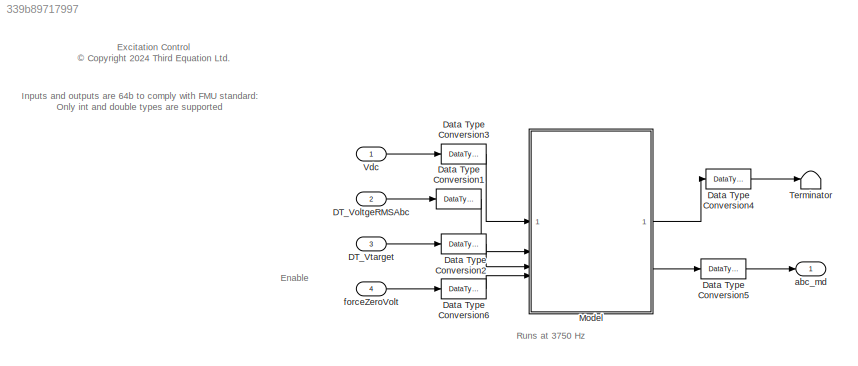
MODEL slx_339b89717997
KIND model
BLOCK [Inport] DT_VoltgeRMSAbc
  OutDataTypeStr = double
  Port = 2
  PortDimensions = 3
  Unit = V
BLOCK [Inport] DT_Vtarget
  OutDataTypeStr = double
  Port = 3
  PortDimensions = 3
  Unit = V
BLOCK [DataTypeConversion] Data Type Conversion1
  RndMeth = Floor
  SaturateOnIntegerOverflow = off
BLOCK [DataTypeConversion] Data Type Conversion2
  RndMeth = Floor
  SaturateOnIntegerOverflow = off
BLOCK [DataTypeConversion] Data Type Conversion3
  RndMeth = Floor
  SaturateOnIntegerOverflow = off
BLOCK [DataTypeConversion] Data Type Conversion4
  RndMeth = Floor
  SaturateOnIntegerOverflow = off
BLOCK [DataTypeConversion] Data Type Conversion5
  RndMeth = Floor
  SaturateOnIntegerOverflow = off
BLOCK [DataTypeConversion] Data Type Conversion6
  RndMeth = Floor
  SaturateOnIntegerOverflow = off
BLOCK [ModelReference] Model
  CopyOfModelProtected = on
  ModelNameDialog = EC_core_control_protected.slxp
  ModelReferenceVersion = 1.40
BLOCK [Terminator] Terminator
BLOCK [Inport] Vdc
  OutDataTypeStr = double
  PortDimensions = 1
BLOCK [Outport] abc_md
  OutDataTypeStr = double
  PortDimensions = 3
BLOCK [Inport] forceZeroVolt
  OutDataTypeStr = int32
  Port = 4
  PortDimensions = 1
  Unit = V
ANNOTATION (root): Excitation Control <copyright redacted>
ANNOTATION (root): Inputs and outputs are 64b to comply with FMU standard: Only int and double types are supported
ANNOTATION (root): Runs at 3750 Hz
ANNOTATION (root): Enable
LINE DT_VoltgeRMSAbc:1 -> Data Type Conversion1:1
LINE DT_Vtarget:1 -> Data Type Conversion2:1
LINE Data Type Conversion1:1 -> Model:2
LINE Data Type Conversion2:1 -> Model:3
LINE Data Type Conversion3:1 -> Model:1
LINE Data Type Conversion4:1 -> Terminator:1
LINE Data Type Conversion5:1 -> abc_md:1
LINE Data Type Conversion6:1 -> Model:4
LINE Model:1 -> Data Type Conversion4:1
LINE Model:2 -> Data Type Conversion5:1
LINE Vdc:1 -> Data Type Conversion3:1
LINE forceZeroVolt:1 -> Data Type Conversion6:1
